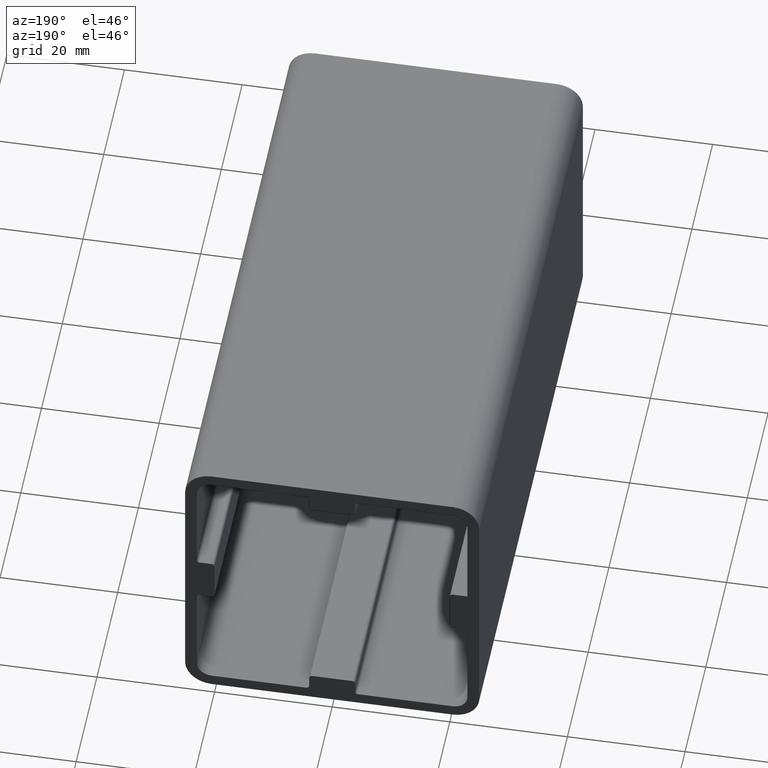
[diagram: clean part render]
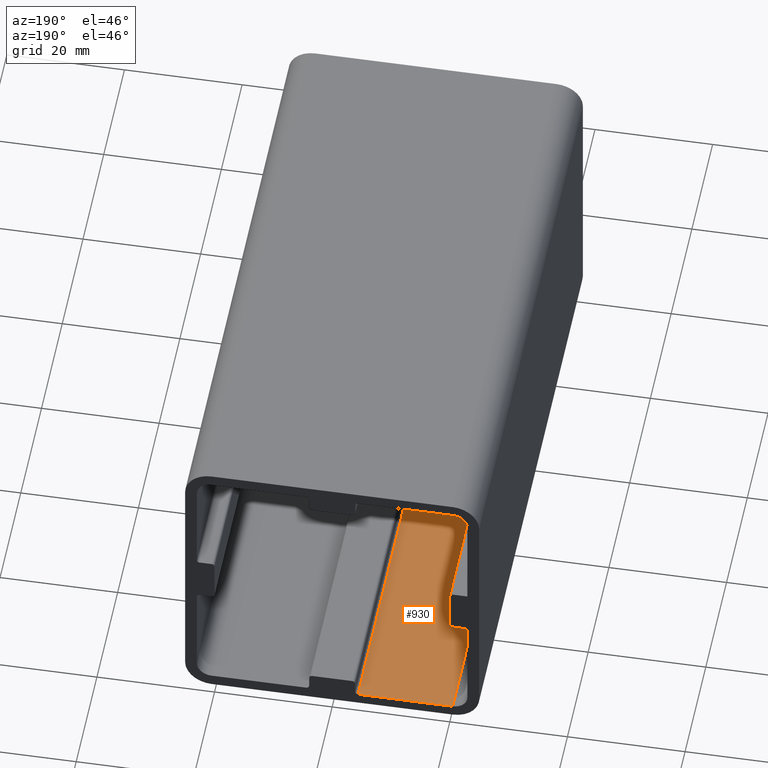
[diagram: same view with one face highlighted and labeled with its STEP entity id]
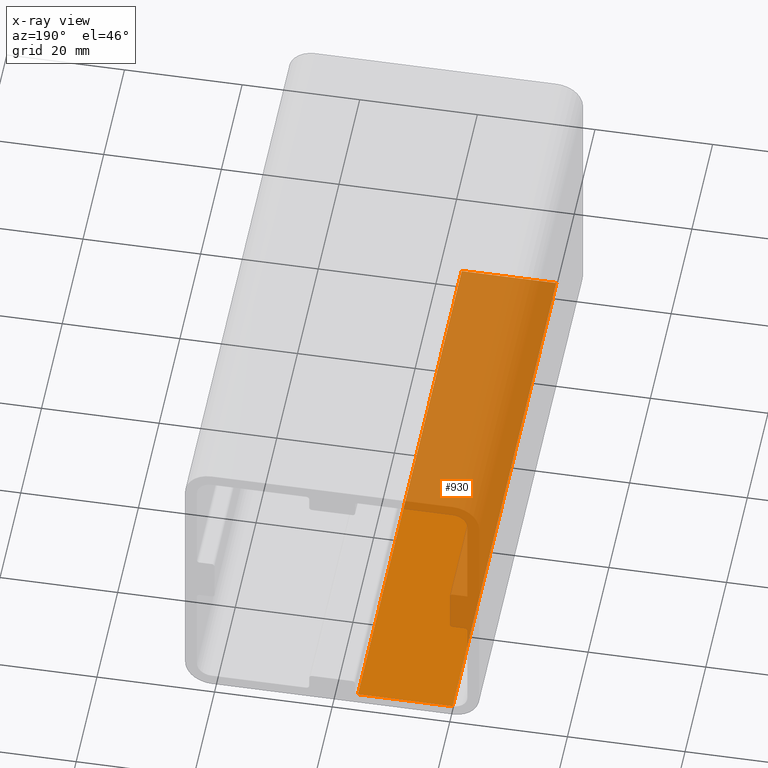
[diagram: x-ray of the same camera — body ghosted, the highlighted face saturated]
A machine part, auxiliary view. The second image highlights one B-rep face of the part: STEP entity #930.
The next image is the same camera in x-ray: the body ghosted, the highlighted face saturated — about 64% of this face is hidden behind the body in this view.
In plain terms, the highlighted planar face has unit normal (0, 0, -1).
Its self-contained STEP definition (entity closure, byte-faithful):
#22=PLANE('',#1045);
#54=FACE_OUTER_BOUND('',#105,.T.);
#105=EDGE_LOOP('',(#744,#745,#746,#747));
#166=LINE('',#1464,#261);
#179=LINE('',#1505,#274);
#202=LINE('',#1581,#297);
#204=LINE('',#1584,#299);
#261=VECTOR('',#1156,10.);
#274=VECTOR('',#1193,10.);
#297=VECTOR('',#1258,10.);
#299=VECTOR('',#1262,10.);
#423=VERTEX_POINT('',#1461);
#424=VERTEX_POINT('',#1463);
#439=VERTEX_POINT('',#1502);
#440=VERTEX_POINT('',#1504);
#518=EDGE_CURVE('',#423,#424,#166,.T.);
#539=EDGE_CURVE('',#439,#440,#179,.T.);
#578=EDGE_CURVE('',#440,#423,#202,.T.);
#580=EDGE_CURVE('',#424,#439,#204,.T.);
#744=ORIENTED_EDGE('',*,*,#578,.F.);
#745=ORIENTED_EDGE('',*,*,#539,.F.);
#746=ORIENTED_EDGE('',*,*,#580,.F.);
#747=ORIENTED_EDGE('',*,*,#518,.F.);
#930=ADVANCED_FACE('',(#54),#22,.F.);
#1045=AXIS2_PLACEMENT_3D('',#1583,#1260,#1261);
#1156=DIRECTION('',(1.,0.,0.));
#1193=DIRECTION('',(-1.,0.,0.));
#1258=DIRECTION('',(0.,1.,0.));
#1260=DIRECTION('center_axis',(0.,0.,-1.));
#1261=DIRECTION('ref_axis',(-1.,0.,0.));
#1262=DIRECTION('',(0.,-1.,0.));
#1461=CARTESIAN_POINT('',(-20.5,100.,-23.));
#1463=CARTESIAN_POINT('',(-4.4,100.,-23.));
#1464=CARTESIAN_POINT('',(-1.95,100.,-23.));
#1502=CARTESIAN_POINT('',(-4.4,0.,-23.));
#1504=CARTESIAN_POINT('',(-20.5,0.,-23.));
#1505=CARTESIAN_POINT('',(-1.95,0.,-23.));
#1581=CARTESIAN_POINT('',(-20.5,0.,-23.));
#1583=CARTESIAN_POINT('Origin',(-3.9,0.,-23.));
#1584=CARTESIAN_POINT('',(-4.4,0.,-23.));